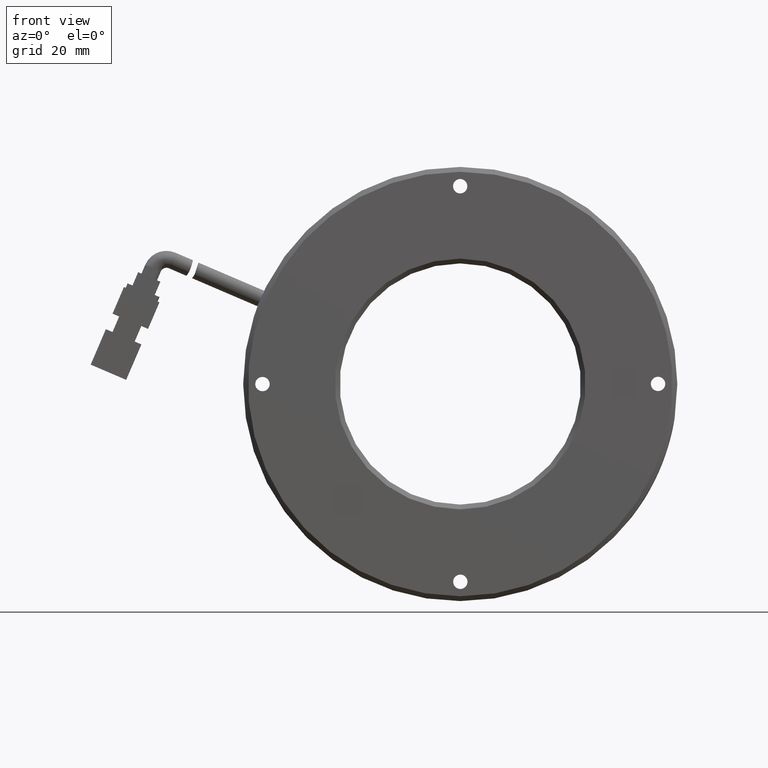
[diagram: clean part render]
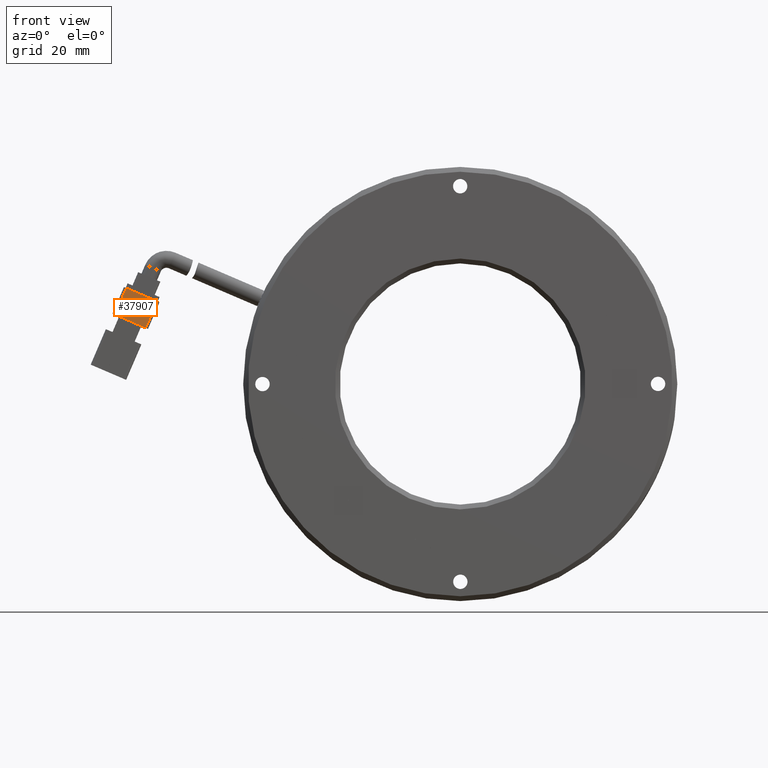
[diagram: same view with one face highlighted and labeled with its STEP entity id]
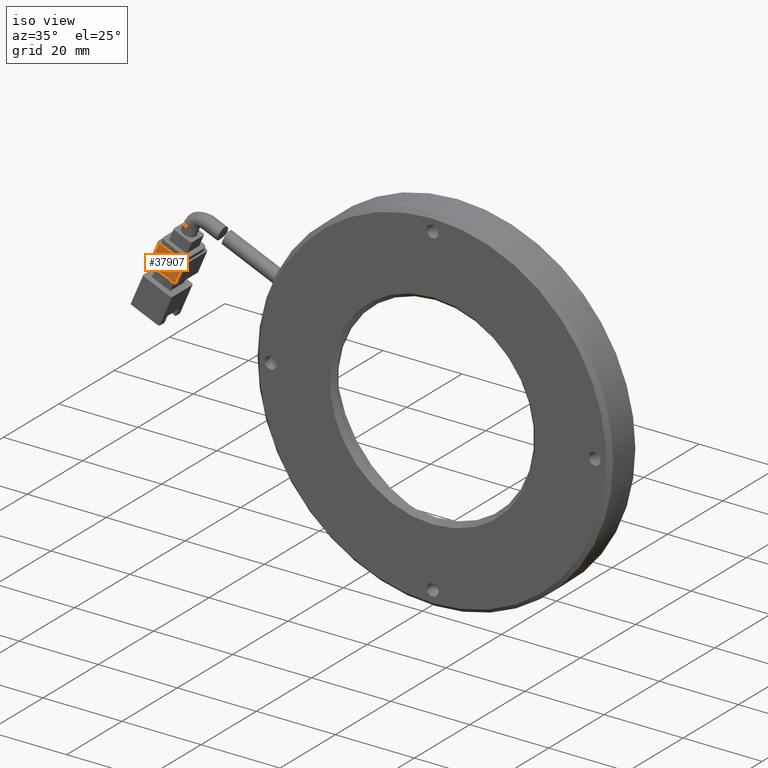
[diagram: same view with one face highlighted and labeled with its STEP entity id]
A machine part, front view. The second image highlights one B-rep face of the part: STEP entity #37907.
A second angle (iso view) of the same face is appended — the face is thin or edge-on in the first view.
In plain terms, the highlighted planar face has unit normal (-0, 1, 0).
Its self-contained STEP definition (entity closure, byte-faithful):
#501 = EDGE_CURVE ( 'NONE', #16371, #11523, #21738, .T. ) ;
#1145 = CARTESIAN_POINT ( 'NONE',  ( -61.62086086083702700, -1.376447876447876300, 11.62821562320376100 ) ) ;
#2219 = LINE ( 'NONE', #17858, #10533 ) ;
#5065 = ORIENTED_EDGE ( 'NONE', *, *, #29646, .F. ) ;
#5568 = CARTESIAN_POINT ( 'NONE',  ( -65.69039635896092500, -1.376447876447878900, 19.90099513371346900 ) ) ;
#5643 = DIRECTION ( 'NONE',  ( -0.9190991241167713000, -7.511771070445275800E-017, 0.3940263951155858500 ) ) ;
#6410 = VECTOR ( 'NONE', #40288, 1000.000000000000100 ) ;
#8293 = DIRECTION ( 'NONE',  ( -0.3940263951155860100, 1.280570519271349500E-016, -0.9190991241167711900 ) ) ;
#9671 = LINE ( 'NONE', #40134, #33914 ) ;
#9785 = CARTESIAN_POINT ( 'NONE',  ( -65.69039635896092500, -1.376447876447878900, 19.90099513371346900 ) ) ;
#10533 = VECTOR ( 'NONE', #36816, 1000.000000000000100 ) ;
#10750 = FACE_OUTER_BOUND ( 'NONE', #34523, .T. ) ;
#11523 = VERTEX_POINT ( 'NONE', #17632 ) ;
#12712 = ORIENTED_EDGE ( 'NONE', *, *, #501, .F. ) ;
#12939 = DIRECTION ( 'NONE',  ( -0.9190991241167711900, -2.478176394252581100E-016, 0.3940263951155860100 ) ) ;
#14746 = AXIS2_PLACEMENT_3D ( 'NONE', #9785, #31882, #12939 ) ;
#15949 = PLANE ( 'NONE',  #14746 ) ;
#16371 = VERTEX_POINT ( 'NONE', #1145 ) ;
#17632 = CARTESIAN_POINT ( 'NONE',  ( -68.05455472965442700, -1.376447876447876300, 14.38640038901285400 ) ) ;
#17858 = CARTESIAN_POINT ( 'NONE',  ( -65.69039635896091100, -1.376447876447878900, 19.90099513371346200 ) ) ;
#18927 = ORIENTED_EDGE ( 'NONE', *, *, #22339, .F. ) ;
#20131 = VERTEX_POINT ( 'NONE', #26940 ) ;
#20709 = VECTOR ( 'NONE', #5643, 1000.000000000000100 ) ;
#21738 = LINE ( 'NONE', #37604, #20709 ) ;
#22339 = EDGE_CURVE ( 'NONE', #20131, #29747, #38955, .T. ) ;
#22603 = ORIENTED_EDGE ( 'NONE', *, *, #30131, .F. ) ;
#26940 = CARTESIAN_POINT ( 'NONE',  ( -65.69039635896091100, -1.376447876447878900, 19.90099513371346500 ) ) ;
#29646 = EDGE_CURVE ( 'NONE', #29747, #16371, #9671, .T. ) ;
#29747 = VERTEX_POINT ( 'NONE', #30963 ) ;
#30131 = EDGE_CURVE ( 'NONE', #11523, #20131, #2219, .T. ) ;
#30963 = CARTESIAN_POINT ( 'NONE',  ( -59.25670249014351800, -1.376447876447878000, 17.14281036790436700 ) ) ;
#31882 = DIRECTION ( 'NONE',  ( -1.773111167964621500E-016, 1.000000000000000000, 2.153438153719941800E-016 ) ) ;
#33914 = VECTOR ( 'NONE', #8293, 1000.000000000000100 ) ;
#34523 = EDGE_LOOP ( 'NONE', ( #5065, #18927, #22603, #12712 ) ) ;
#36816 = DIRECTION ( 'NONE',  ( 0.3940263951155860100, -1.280570519271349500E-016, 0.9190991241167711900 ) ) ;
#37604 = CARTESIAN_POINT ( 'NONE',  ( -61.62086086083701300, -1.376447876447875400, 11.62821562320375600 ) ) ;
#37907 = ADVANCED_FACE ( 'NONE', ( #10750 ), #15949, .F. ) ;
#38955 = LINE ( 'NONE', #5568, #6410 ) ;
#40134 = CARTESIAN_POINT ( 'NONE',  ( -59.25670249014352500, -1.376447876447878000, 17.14281036790436000 ) ) ;
#40288 = DIRECTION ( 'NONE',  ( 0.9190991241167711900, 2.478176394252581100E-016, -0.3940263951155860100 ) ) ;